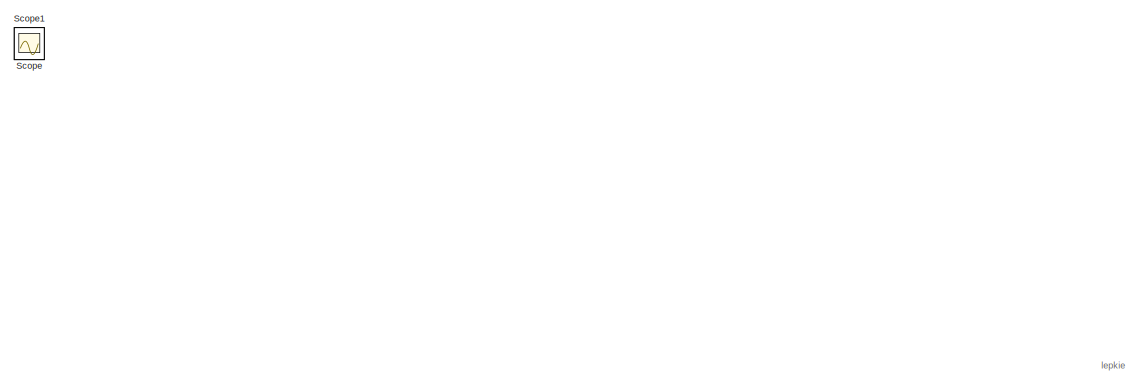
[diagram: root canvas - part 1/2, top left region]
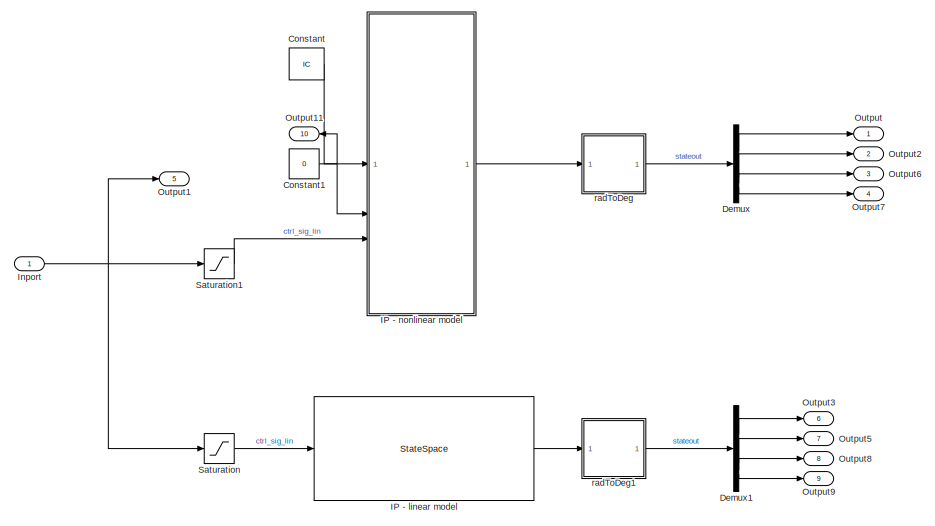
[diagram: root canvas - part 2/2, bottom right region]
MODEL slx_19a52dbff938
KIND model
CONFIG AbsTol = auto
CONFIG EnableMultiTasking = off
CONFIG FixedStep = dt
CONFIG MaxStep = 0.001
CONFIG MinStep = auto
CONFIG RelTol = 1e-3
CONFIG SampleTimeConstraint = Unconstrained
CONFIG SolverName = ode4
CONFIG StartTime = 0.0
CONFIG StopTime = end_time
BLOCK [Constant] Constant
  Value = IC
  VectorParams1D = off
BLOCK [Constant] Constant1
  Value = 0
BLOCK [Demux] Demux
BLOCK [Demux] Demux1
BLOCK [StateSpace] IP - linear model
  A = A
  B = B
  C = C
  D = D
  InitialCondition = IC
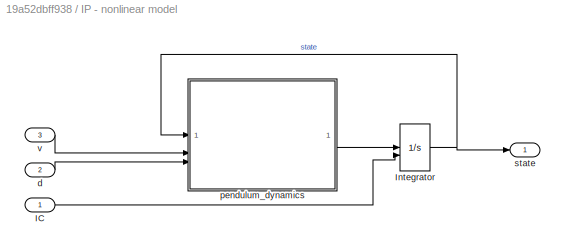
BLOCK [SubSystem] IP - nonlinear model 
  Description = Nonlinear model of inverted pendulum
BLOCK [Inport] IP - nonlinear model /IC
BLOCK [Integrator] IP - nonlinear model /Integrator
  InitialConditionSource = external
BLOCK [Inport] IP - nonlinear model /d
  Port = 2
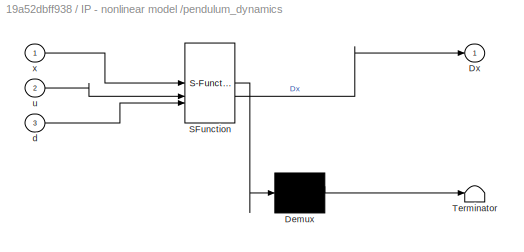
BLOCK [SubSystem] IP - nonlinear model /pendulum_dynamics
  ErrorFcn = Stateflow.Translate.translate
  PermitHierarchicalResolution = ExplicitOnly
  SFBlockType = MATLAB Function
  TreatAsAtomicUnit = on
BLOCK [Demux] IP - nonlinear model /pendulum_dynamics/ Demux 
  Outputs = 1
BLOCK [S-Function] IP - nonlinear model /pendulum_dynamics/ SFunction 
  EnableBusSupport = on
  FunctionName = sf_sfun
  Parameters = params_lepkie
  PortCounts = [3 2]
  SFcnIsStateOwnerBlock = off
  SFunctionDeploymentMode = off
  Tag = Stateflow S-Function 3
BLOCK [Terminator] IP - nonlinear model /pendulum_dynamics/ Terminator 
BLOCK [Outport] IP - nonlinear model /pendulum_dynamics/Dx
BLOCK [Inport] IP - nonlinear model /pendulum_dynamics/d
  Port = 3
BLOCK [Inport] IP - nonlinear model /pendulum_dynamics/u
  Port = 2
BLOCK [Inport] IP - nonlinear model /pendulum_dynamics/x
BLOCK [Outport] IP - nonlinear model /state
BLOCK [Inport] IP - nonlinear model /v
  Port = 3
BLOCK [Inport] Inport
BLOCK [Outport] Output
  SignalName = xw_nl
BLOCK [Outport] Output1
  Port = 5
  SignalName = volt_s
BLOCK [Outport] Output11
  NameLocation = top
  Port = 10
  SignalName = dist
BLOCK [Outport] Output2
  Port = 2
  SignalName = the_nl
BLOCK [Outport] Output3
  Port = 6
  SignalName = xw_l
BLOCK [Outport] Output5
  Port = 7
  SignalName = the_l
BLOCK [Outport] Output6
  Port = 3
  SignalName = Dxw_nl
BLOCK [Outport] Output7
  Port = 4
  SignalName = Dthe_nl
BLOCK [Outport] Output8
  Port = 8
  SignalName = Dxw_l
BLOCK [Outport] Output9
  Port = 9
  SignalName = Dthe_l
BLOCK [Saturate] Saturation
  LowerLimit = -12
  UpperLimit = 12
BLOCK [Saturate] Saturation1
  LowerLimit = -12
  UpperLimit = 12
BLOCK [Scope] Scope
  Floating = off
  IOType = viewer
  NumInputPorts = 1
  ScopeSpecificationString = Simulink.scopes.TimeScopeBlockCfg('CurrentConfiguration', extmgr.ConfigurationSet(extmgr.Configuration('Core','General UI',true),extmgr.Configuration('Core','Source UI',true),extmgr.Configuration('Sources','WiredSimulink',true),extmgr.Configuration('Visuals','Time Domain',true,'SerializedDisplays',{struct('MinYLimReal','-1.11209','MaxYLimReal','1.88409','YLabelReal','','MinYLimMag','0.00000','MaxY...<+1433ch>
BLOCK [Scope] Scope1
  Floating = off
  IOType = viewer
  NumInputPorts = 1
  ScopeSpecificationString = Simulink.scopes.TimeScopeBlockCfg('CurrentConfiguration', extmgr.ConfigurationSet(extmgr.Configuration('Core','General UI',true),extmgr.Configuration('Core','Source UI',true),extmgr.Configuration('Sources','WiredSimulink',true,'DataLoggingVariableName','ScopeData1'),extmgr.Configuration('Visuals','Time Domain',true,'SerializedDisplays',{struct('MinYLimReal','-0.01388','MaxYLimReal','0.12494','YLab...<+1404ch>
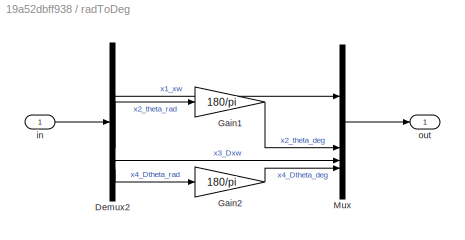
BLOCK [SubSystem] radToDeg
BLOCK [Demux] radToDeg/Demux2
BLOCK [Gain] radToDeg/Gain1
  Gain = 180/pi
BLOCK [Gain] radToDeg/Gain2
  Gain = 180/pi
BLOCK [Mux] radToDeg/Mux
  DisplayOption = bar
BLOCK [Inport] radToDeg/in
BLOCK [Outport] radToDeg/out
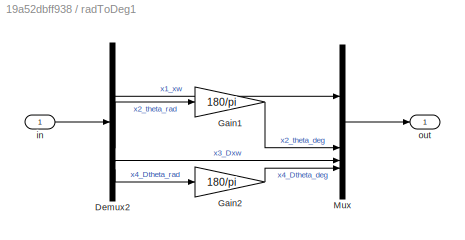
BLOCK [SubSystem] radToDeg1
BLOCK [Demux] radToDeg1/Demux2
BLOCK [Gain] radToDeg1/Gain1
  Gain = 180/pi
BLOCK [Gain] radToDeg1/Gain2
  Gain = 180/pi
BLOCK [Mux] radToDeg1/Mux
  DisplayOption = bar
BLOCK [Inport] radToDeg1/in
BLOCK [Outport] radToDeg1/out
ANNOTATION (root): lepkie
NET Constant1:1 -> IP - nonlinear model :2, Output11:1
LINE Constant:1 -> IP - nonlinear model :1
LINE Demux1:1 -> Output3:1
LINE Demux1:2 -> Output5:1
LINE Demux1:3 -> Output8:1
LINE Demux1:4 -> Output9:1
LINE Demux:1 -> Output:1
LINE Demux:2 -> Output2:1
LINE Demux:3 -> Output6:1
LINE Demux:4 -> Output7:1
LINE IP - linear model:1 -> radToDeg1:1
LINE IP - nonlinear model /IC:1 -> IP - nonlinear model /Integrator:2
NET IP - nonlinear model /Integrator:1 -> IP - nonlinear model /pendulum_dynamics:1, IP - nonlinear model /state:1
LINE IP - nonlinear model /d:1 -> IP - nonlinear model /pendulum_dynamics:3
LINE IP - nonlinear model /pendulum_dynamics:1 -> IP - nonlinear model /Integrator:1
LINE IP - nonlinear model /v:1 -> IP - nonlinear model /pendulum_dynamics:2
LINE IP - nonlinear model :1 -> radToDeg:1
NET Inport:1 -> Output1:1, Saturation1:1, Saturation:1
LINE Saturation1:1 -> IP - nonlinear model :3
LINE Saturation:1 -> IP - linear model:1
LINE radToDeg/Demux2:1 -> radToDeg/Mux:1
LINE radToDeg/Demux2:2 -> radToDeg/Gain1:1
LINE radToDeg/Demux2:3 -> radToDeg/Mux:3
LINE radToDeg/Demux2:4 -> radToDeg/Gain2:1
LINE radToDeg/Gain1:1 -> radToDeg/Mux:2
LINE radToDeg/Gain2:1 -> radToDeg/Mux:4
LINE radToDeg/Mux:1 -> radToDeg/out:1
LINE radToDeg/in:1 -> radToDeg/Demux2:1
LINE radToDeg1/Demux2:1 -> radToDeg1/Mux:1
LINE radToDeg1/Demux2:2 -> radToDeg1/Gain1:1
LINE radToDeg1/Demux2:3 -> radToDeg1/Mux:3
LINE radToDeg1/Demux2:4 -> radToDeg1/Gain2:1
LINE radToDeg1/Gain1:1 -> radToDeg1/Mux:2
LINE radToDeg1/Gain2:1 -> radToDeg1/Mux:4
LINE radToDeg1/Mux:1 -> radToDeg1/out:1
LINE radToDeg1/in:1 -> radToDeg1/Demux2:1
LINE radToDeg1:1 -> Demux1:1
LINE radToDeg:1 -> Demux:1
note: NET lines group one-source signal fan-out (src -> all destinations, sorted); 1:1 wires keep LINE
CHART IP - nonlinear model /pendulum_dynamics states=1 transitions=1
  STATE_LABEL 'eML_blk_kernel()'
  STATE_LABEL 'SCRIPT:\nfunction Dx = dynamika_wahadla(x, u, d, params_lepkie)\n% x : stan\n% u : input - napięcie\n%\n% params scope: "parameters"\n%\n\n% State, function input: x = [x Dx theta Dtheta]\'\nx1 = x(1);\nx2 = x(2); \nx3 = x(3);\nx4 = x(4);\n\n% if (x1 >= 0.47)\n%    x1 = 0.47;\n%    x2 = 0;\n% elseif (x1 <= 0)\n%    x1 = 0;\n%    x2 = 0;\n% end\n\nparams_lepkie = num2cell(params_lepkie);\n[M, mc, mp, Lp, Lc, g, b, gamma, ...<+432ch>'
CHART  states=0 transitions=0
